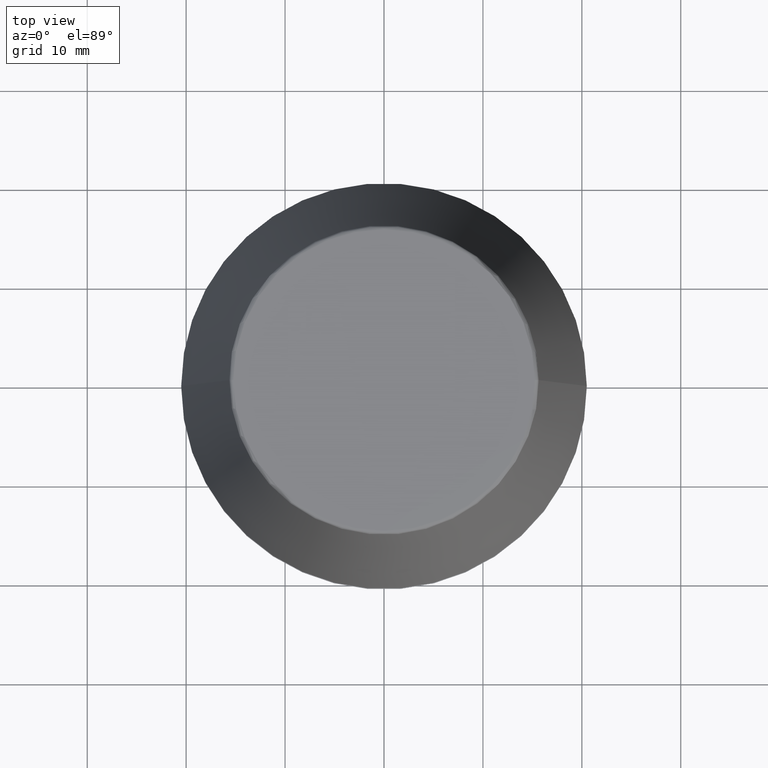
[diagram: clean part render]
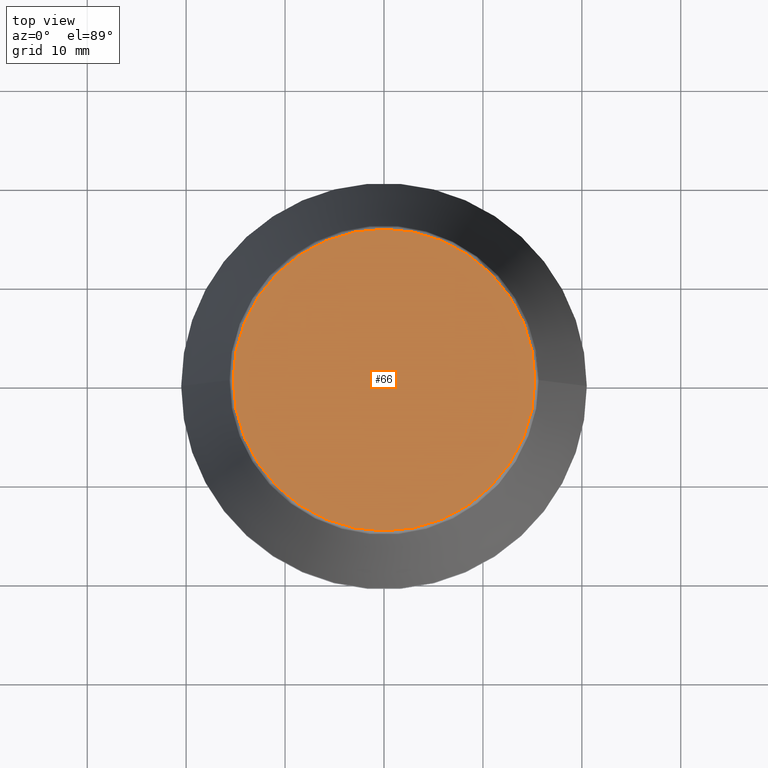
[diagram: same view with one face highlighted and labeled with its STEP entity id]
A machine part, top view. The second image highlights one B-rep face of the part: STEP entity #66.
In plain terms, the highlighted planar face has unit normal (0, 0, -1).
Its self-contained STEP definition (entity closure, byte-faithful):
#4 = EDGE_CURVE ( 'NONE', #14, #268, #61, .T. ) ;
#6 = AXIS2_PLACEMENT_3D ( 'NONE', #228, #216, #329 ) ;
#14 = VERTEX_POINT ( 'NONE', #238 ) ;
#36 = CIRCLE ( 'NONE', #182, 15.24773554530077600 ) ;
#50 = CARTESIAN_POINT ( 'NONE',  ( 0.0000000000000000000, 0.0000000000000000000, 46.00000000000000000 ) ) ;
#61 = CIRCLE ( 'NONE', #386, 15.24773554530077600 ) ;
#66 = ADVANCED_FACE ( 'NONE', ( #141 ), #350, .F. ) ;
#90 = EDGE_LOOP ( 'NONE', ( #260, #368 ) ) ;
#102 = DIRECTION ( 'NONE',  ( 1.000000000000000000, 0.0000000000000000000, 0.0000000000000000000 ) ) ;
#113 = CARTESIAN_POINT ( 'NONE',  ( -15.24773554530077600, 1.891563625393435400E-015, 46.00000000000000000 ) ) ;
#121 = EDGE_CURVE ( 'NONE', #268, #14, #36, .T. ) ;
#141 = FACE_OUTER_BOUND ( 'NONE', #90, .T. ) ;
#172 = DIRECTION ( 'NONE',  ( -0.0000000000000000000, -0.0000000000000000000, 1.000000000000000000 ) ) ;
#182 = AXIS2_PLACEMENT_3D ( 'NONE', #262, #172, #102 ) ;
#195 = DIRECTION ( 'NONE',  ( -0.0000000000000000000, -0.0000000000000000000, 1.000000000000000000 ) ) ;
#216 = DIRECTION ( 'NONE',  ( 0.0000000000000000000, 0.0000000000000000000, -1.000000000000000000 ) ) ;
#227 = DIRECTION ( 'NONE',  ( 1.000000000000000000, 0.0000000000000000000, 0.0000000000000000000 ) ) ;
#228 = CARTESIAN_POINT ( 'NONE',  ( 0.0000000000000000000, 15.24773554530077600, 46.00000000000000000 ) ) ;
#238 = CARTESIAN_POINT ( 'NONE',  ( 15.24773554530077600, 0.0000000000000000000, 46.00000000000000000 ) ) ;
#260 = ORIENTED_EDGE ( 'NONE', *, *, #4, .T. ) ;
#262 = CARTESIAN_POINT ( 'NONE',  ( 0.0000000000000000000, 0.0000000000000000000, 46.00000000000000000 ) ) ;
#268 = VERTEX_POINT ( 'NONE', #113 ) ;
#329 = DIRECTION ( 'NONE',  ( -1.000000000000000000, 0.0000000000000000000, -0.0000000000000000000 ) ) ;
#350 = PLANE ( 'NONE',  #6 ) ;
#368 = ORIENTED_EDGE ( 'NONE', *, *, #121, .T. ) ;
#386 = AXIS2_PLACEMENT_3D ( 'NONE', #50, #195, #227 ) ;